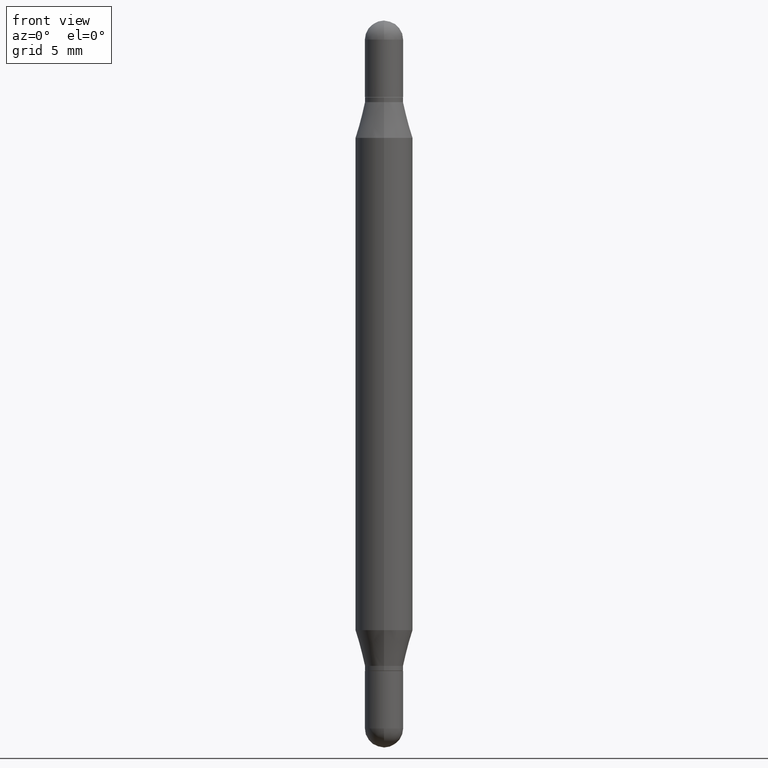
[diagram: clean part render]
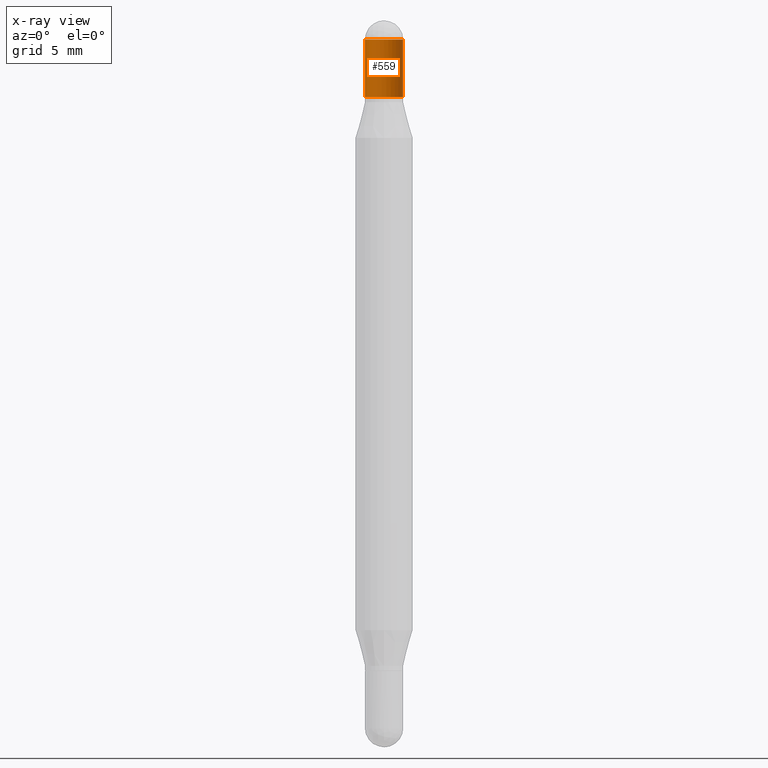
[diagram: x-ray — body ghosted, one internal face saturated and labeled with its STEP entity id]
A machine part, front view, then the same camera in x-ray: the body is ghosted and one INTERNAL B-rep face — a face not visible from any outside direction — is saturated and labeled: STEP entity #559.
In plain terms, the highlighted cylindrical surface (edge-blend (fillet) strip) has radius 0.9995 mm, axis along (-0, -0, -1).
Its self-contained STEP definition (entity closure, byte-faithful):
#4 = CARTESIAN_POINT ( 'NONE',  ( -0.03935000000000000303, -8.139747119883315106E-17, -0.1574999999999998901 ) ) ;
#62 = CYLINDRICAL_SURFACE ( 'NONE', #495, 0.03935000000000000303 ) ;
#71 = CARTESIAN_POINT ( 'NONE',  ( 0.03935000000000000303, -8.316958734148117577E-16, -0.1574999999999998901 ) ) ;
#86 = DIRECTION ( 'NONE',  ( -2.445468806185136877E-29, -3.479614466977828648E-15, -1.000000000000000000 ) ) ;
#105 = VERTEX_POINT ( 'NONE', #71 ) ;
#145 = CARTESIAN_POINT ( 'NONE',  ( -0.03935000000000000303, -4.944767621332070245E-15, -1.496099999999999985 ) ) ;
#169 = DIRECTION ( 'NONE',  ( 1.000000000000000000, -6.982962677686266711E-15, 0.000000000000000000 ) ) ;
#185 = AXIS2_PLACEMENT_3D ( 'NONE', #256, #509, #169 ) ;
#192 = VERTEX_POINT ( 'NONE', #4 ) ;
#252 = AXIS2_PLACEMENT_3D ( 'NONE', #1082, #452, #733 ) ;
#256 = CARTESIAN_POINT ( 'NONE',  ( 3.562436683410197746E-29, -1.457998427744287112E-16, -0.03934999999999994752 ) ) ;
#364 = ORIENTED_EDGE ( 'NONE', *, *, #942, .F. ) ;
#368 = EDGE_CURVE ( 'NONE', #105, #192, #415, .T. ) ;
#403 = CARTESIAN_POINT ( 'NONE',  ( 0.03935000000000000303, -6.261376487780972369E-16, -0.03934999999999994752 ) ) ;
#415 = CIRCLE ( 'NONE', #252, 0.03935000000000000303 ) ;
#417 = FACE_OUTER_BOUND ( 'NONE', #1062, .T. ) ;
#424 = CARTESIAN_POINT ( 'NONE',  ( 2.699605962123452963E-16, 0.03934999999999985038, -0.03935000000000008630 ) ) ;
#444 = DIRECTION ( 'NONE',  ( 2.445468806185136597E-29, 3.479614466977828254E-15, 1.000000000000000000 ) ) ;
#448 = VERTEX_POINT ( 'NONE', #424 ) ;
#452 = DIRECTION ( 'NONE',  ( 2.445468806185136597E-29, 3.479614466977828254E-15, 1.000000000000000000 ) ) ;
#477 = ORIENTED_EDGE ( 'NONE', *, *, #368, .T. ) ;
#478 = DIRECTION ( 'NONE',  ( -2.445468806185136877E-29, -3.479614466977828648E-15, -1.000000000000000000 ) ) ;
#495 = AXIS2_PLACEMENT_3D ( 'NONE', #1018, #502, #1014 ) ;
#502 = DIRECTION ( 'NONE',  ( -2.445468806185136597E-29, -3.479614466977828254E-15, -1.000000000000000000 ) ) ;
#509 = DIRECTION ( 'NONE',  ( 2.445468806185136597E-29, 3.479614466977828254E-15, 1.000000000000000000 ) ) ;
#530 = CARTESIAN_POINT ( 'NONE',  ( 3.562436683410197746E-29, -1.457998427744287112E-16, -0.03934999999999994752 ) ) ;
#531 = VECTOR ( 'NONE', #86, 39.37007874015748143 ) ;
#532 = AXIS2_PLACEMENT_3D ( 'NONE', #530, #444, #1057 ) ;
#559 = ADVANCED_FACE ( 'NONE', ( #417 ), #62, .T. ) ;
#612 = CARTESIAN_POINT ( 'NONE',  ( 0.03935000000000000303, -5.489507798911334023E-15, -1.496099999999999985 ) ) ;
#623 = VERTEX_POINT ( 'NONE', #403 ) ;
#692 = EDGE_CURVE ( 'NONE', #448, #787, #870, .T. ) ;
#733 = DIRECTION ( 'NONE',  ( 1.000000000000000000, -6.982962677686266711E-15, 0.000000000000000000 ) ) ;
#734 = EDGE_CURVE ( 'NONE', #623, #105, #766, .T. ) ;
#755 = ORIENTED_EDGE ( 'NONE', *, *, #734, .T. ) ;
#766 = LINE ( 'NONE', #612, #531 ) ;
#787 = VERTEX_POINT ( 'NONE', #948 ) ;
#870 = CIRCLE ( 'NONE', #185, 0.03935000000000000303 ) ;
#873 = LINE ( 'NONE', #145, #1110 ) ;
#914 = ORIENTED_EDGE ( 'NONE', *, *, #692, .F. ) ;
#942 = EDGE_CURVE ( 'NONE', #787, #192, #873, .T. ) ;
#948 = CARTESIAN_POINT ( 'NONE',  ( -0.03935000000000000303, -8.139747119883290454E-17, -0.03934999999999994752 ) ) ;
#1014 = DIRECTION ( 'NONE',  ( 1.000000000000000000, -6.982962677686269077E-15, 0.000000000000000000 ) ) ;
#1016 = EDGE_CURVE ( 'NONE', #623, #448, #1023, .T. ) ;
#1018 = CARTESIAN_POINT ( 'NONE',  ( 0.000000000000000000, -5.214728217544379106E-15, -1.496099999999999985 ) ) ;
#1023 = CIRCLE ( 'NONE', #532, 0.03935000000000000303 ) ;
#1050 = ORIENTED_EDGE ( 'NONE', *, *, #1016, .F. ) ;
#1057 = DIRECTION ( 'NONE',  ( 1.000000000000000000, -6.982962677686266711E-15, 0.000000000000000000 ) ) ;
#1062 = EDGE_LOOP ( 'NONE', ( #364, #914, #1050, #755, #477 ) ) ;
#1082 = CARTESIAN_POINT ( 'NONE',  ( 3.273504543959423913E-29, -5.569162920478571366E-16, -0.1574999999999998901 ) ) ;
#1110 = VECTOR ( 'NONE', #478, 39.37007874015748143 ) ;